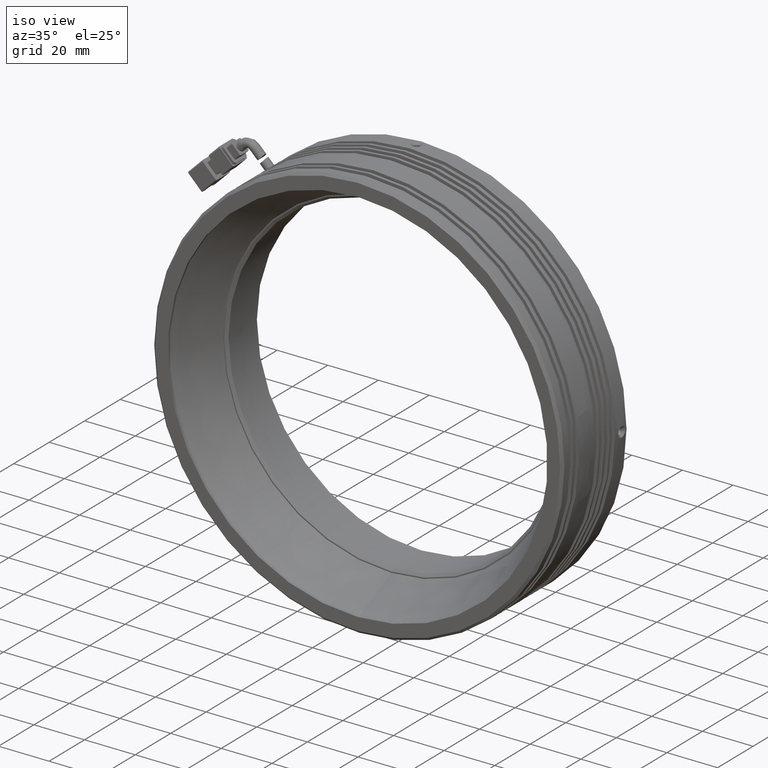
[diagram: clean part render]
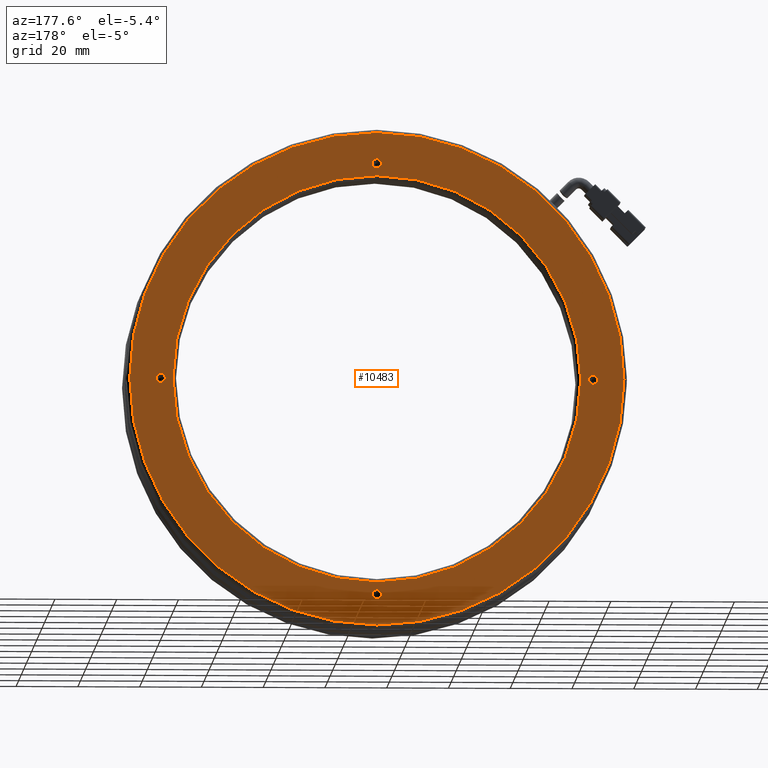
[diagram: tour spotlight — one face highlighted and labeled with its STEP entity id]
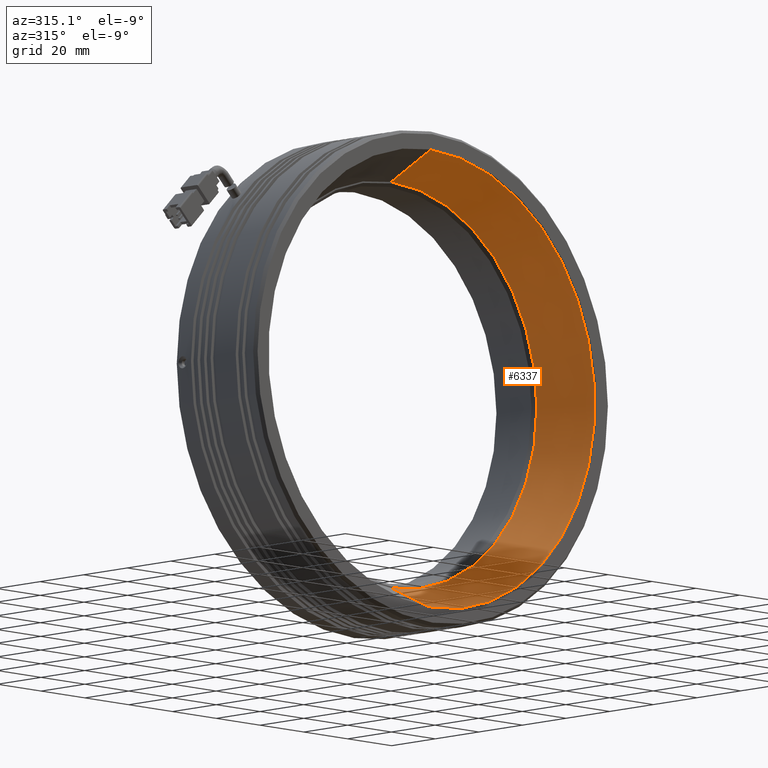
[diagram: tour spotlight — one face highlighted and labeled with its STEP entity id]
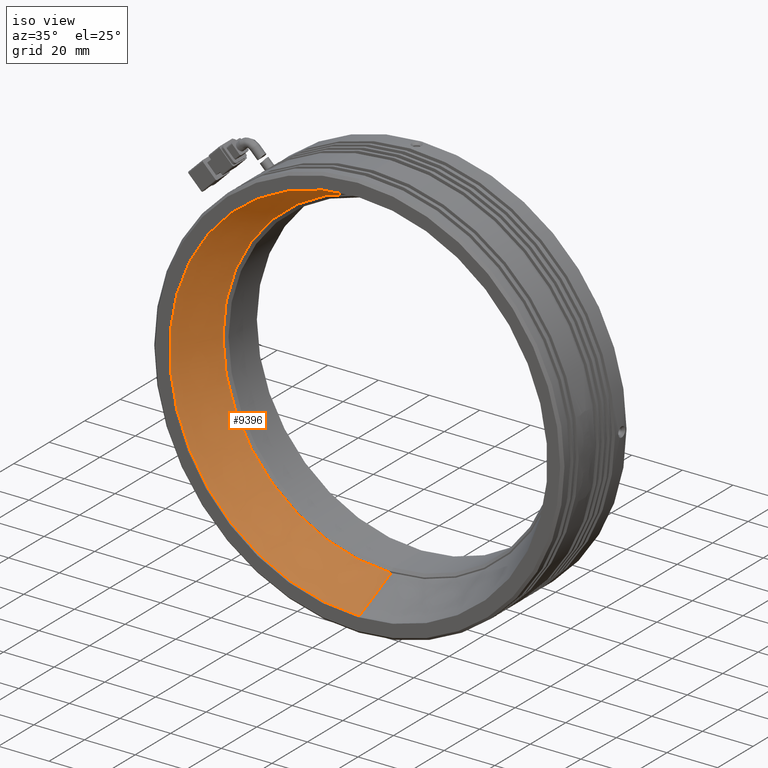
[diagram: tour spotlight — one face highlighted and labeled with its STEP entity id]
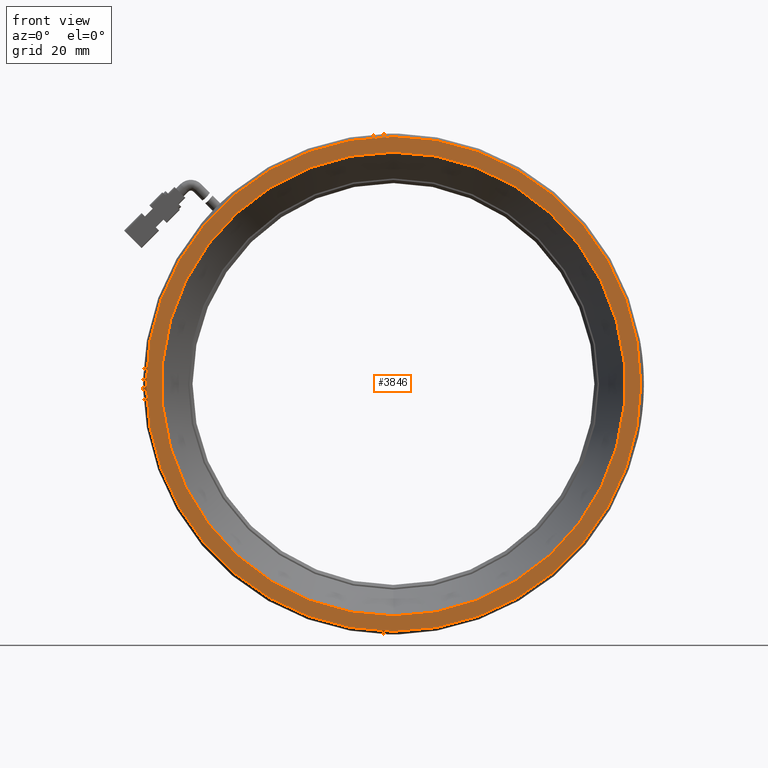
[diagram: tour spotlight — one face highlighted and labeled with its STEP entity id]
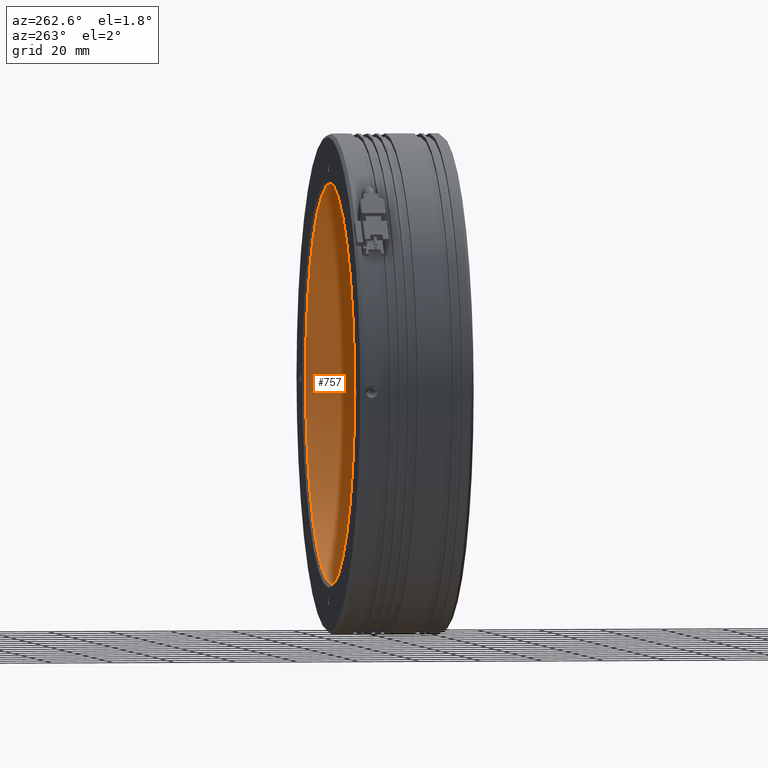
[diagram: tour spotlight — one face highlighted and labeled with its STEP entity id]
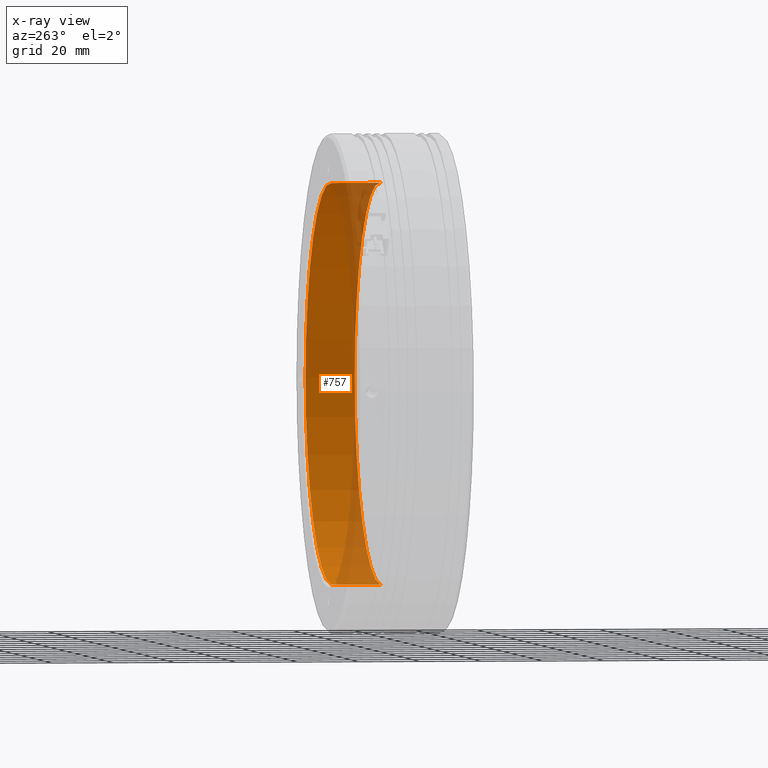
[diagram: x-ray of the same camera — body ghosted, this tour face saturated]
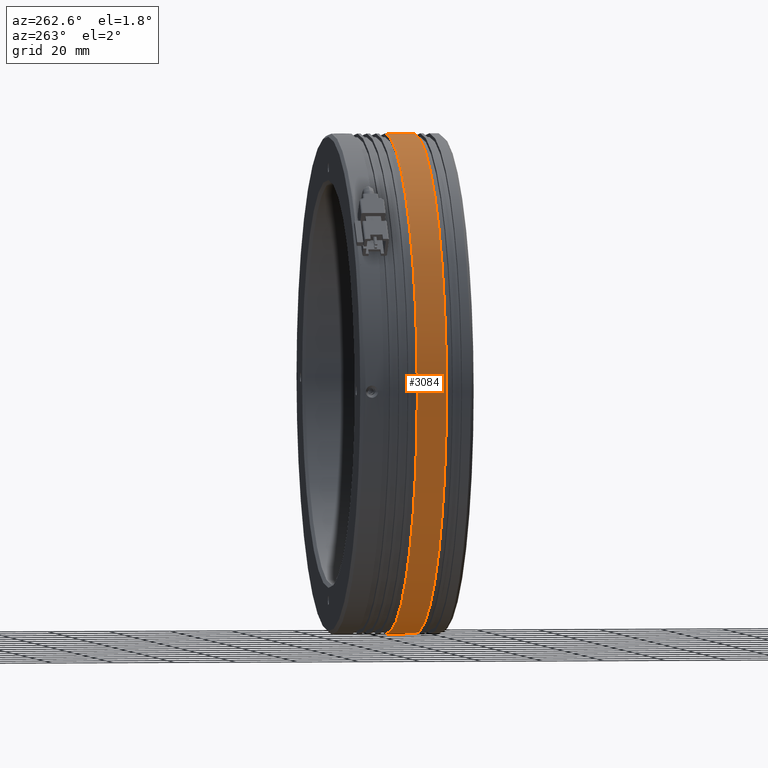
[diagram: tour spotlight — one face highlighted and labeled with its STEP entity id]
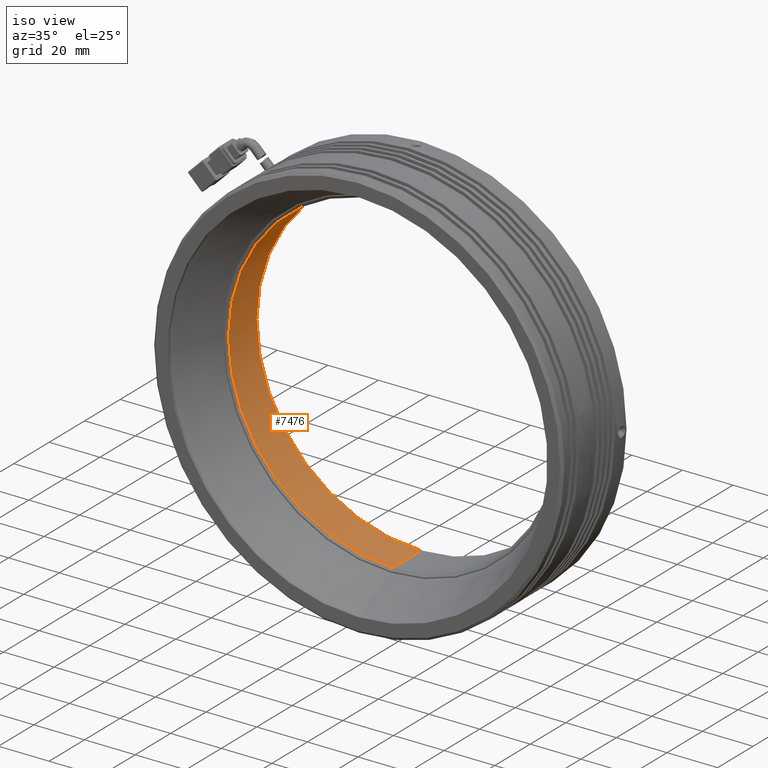
[diagram: tour spotlight — one face highlighted and labeled with its STEP entity id]
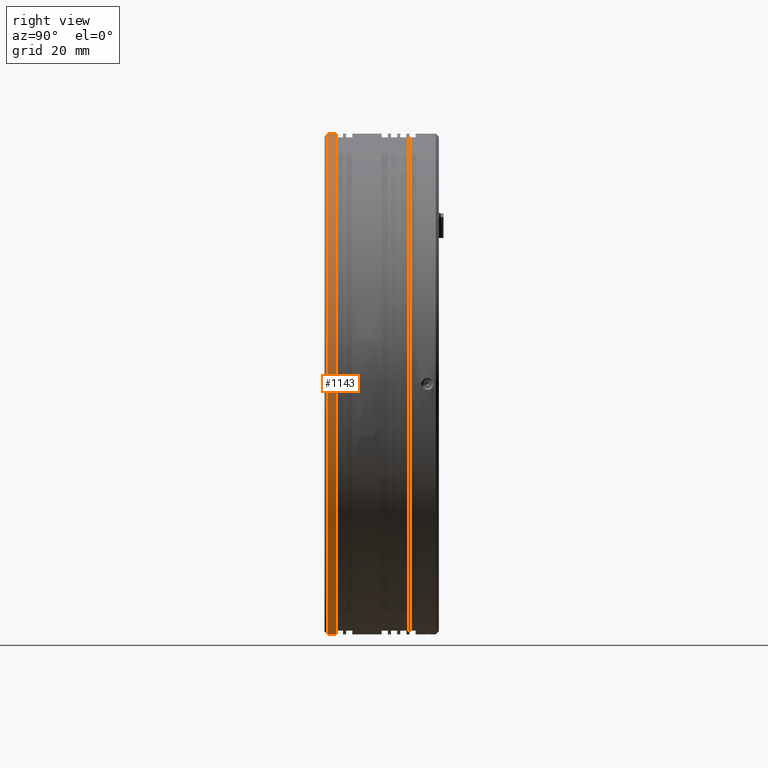
[diagram: tour spotlight — one face highlighted and labeled with its STEP entity id]
A machine part: a face-by-face anatomy tour. The part has 260 B-rep faces; the first image is the clean iso view, then the 8 largest visible faces are spotlighted one at a time (largest first), each with its STEP entity span.

Face 1 — auxiliary view, entity #10483. In plain terms, the highlighted planar face has unit normal (0, -1, 0).
Definition (entity closure, byte-faithful):
#1 = CIRCLE ( 'NONE', #6505, 66.00000000000001400 ) ;
#26 = FACE_BOUND ( 'NONE', #10278, .T. ) ;
#43 = CARTESIAN_POINT ( 'NONE',  ( -90.78502226688003400, 27.87111437184006100, 0.0000000000000000000 ) ) ;
#92 = VERTEX_POINT ( 'NONE', #3759 ) ;
#125 = CIRCLE ( 'NONE', #6568, 1.500000000000001300 ) ;
#360 = CIRCLE ( 'NONE', #4911, 79.99999999999998600 ) ;
#825 = VERTEX_POINT ( 'NONE', #10581 ) ;
#1055 = DIRECTION ( 'NONE',  ( 0.0000000000000000000, -0.0000000000000000000, -1.000000000000000000 ) ) ;
#1250 = CIRCLE ( 'NONE', #12548, 1.500000000000001300 ) ;
#1434 = EDGE_CURVE ( 'NONE', #5107, #11565, #360, .T. ) ;
#1439 = ORIENTED_EDGE ( 'NONE', *, *, #12697, .F. ) ;
#1466 = DIRECTION ( 'NONE',  ( -0.0000000000000000000, 1.000000000000000000, -0.0000000000000000000 ) ) ;
#1492 = ORIENTED_EDGE ( 'NONE', *, *, #3325, .F. ) ;
#1650 = EDGE_CURVE ( 'NONE', #8240, #825, #11745, .T. ) ;
#1949 = EDGE_CURVE ( 'NONE', #6465, #4518, #6792, .T. ) ;
#2053 = CIRCLE ( 'NONE', #8450, 1.500000000000001300 ) ;
#2465 = AXIS2_PLACEMENT_3D ( 'NONE', #43, #7068, #1055 ) ;
#2708 = FACE_BOUND ( 'NONE', #10499, .T. ) ;
#2718 = ORIENTED_EDGE ( 'NONE', *, *, #1434, .F. ) ;
#2871 = EDGE_LOOP ( 'NONE', ( #12938, #1492 ) ) ;
#3003 = CARTESIAN_POINT ( 'NONE',  ( -9.785022266879552800, 27.87111437184006100, -71.50000000000001400 ) ) ;
#3159 = CARTESIAN_POINT ( 'NONE',  ( -9.785022266880030600, 27.87111437184006100, 71.50000000000001400 ) ) ;
#3167 = VERTEX_POINT ( 'NONE', #10459 ) ;
#3191 = DIRECTION ( 'NONE',  ( -0.0000000000000000000, 1.000000000000000000, -0.0000000000000000000 ) ) ;
#3325 = EDGE_CURVE ( 'NONE', #13140, #5168, #1250, .T. ) ;
#3452 = DIRECTION ( 'NONE',  ( -0.0000000000000000000, 1.000000000000000000, -0.0000000000000000000 ) ) ;
#3497 = AXIS2_PLACEMENT_3D ( 'NONE', #4463, #11585, #5494 ) ;
#3677 = ORIENTED_EDGE ( 'NONE', *, *, #12940, .F. ) ;
#3759 = CARTESIAN_POINT ( 'NONE',  ( 60.21497773311997300, 27.87111437184006100, -1.499999999999272800 ) ) ;
#3829 = CARTESIAN_POINT ( 'NONE',  ( -79.78502226688004800, 27.87111437184006100, 1.499999999999761700 ) ) ;
#3860 = DIRECTION ( 'NONE',  ( -0.0000000000000000000, 1.000000000000000000, -0.0000000000000000000 ) ) ;
#3963 = ORIENTED_EDGE ( 'NONE', *, *, #1650, .F. ) ;
#3984 = EDGE_CURVE ( 'NONE', #12317, #5420, #6161, .T. ) ;
#4137 = CARTESIAN_POINT ( 'NONE',  ( -9.785022266880036000, 27.87111437184006100, 0.0000000000000000000 ) ) ;
#4362 = DIRECTION ( 'NONE',  ( -0.0000000000000000000, 1.000000000000000000, 0.0000000000000000000 ) ) ;
#4439 = AXIS2_PLACEMENT_3D ( 'NONE', #10467, #4362, #11485 ) ;
#4463 = CARTESIAN_POINT ( 'NONE',  ( -9.785022266880030600, 27.87111437184006100, 70.00000000000000000 ) ) ;
#4518 = VERTEX_POINT ( 'NONE', #3159 ) ;
#4526 = CARTESIAN_POINT ( 'NONE',  ( -9.785022266880027100, 27.87111437184006100, -66.00000000000001400 ) ) ;
#4535 = DIRECTION ( 'NONE',  ( -0.0000000000000000000, 1.000000000000000000, -0.0000000000000000000 ) ) ;
#4736 = DIRECTION ( 'NONE',  ( -0.0000000000000000000, 1.000000000000000000, -0.0000000000000000000 ) ) ;
#4911 = AXIS2_PLACEMENT_3D ( 'NONE', #6010, #13127, #7021 ) ;
#4954 = DIRECTION ( 'NONE',  ( -0.0000000000000000000, 1.000000000000000000, 0.0000000000000000000 ) ) ;
#5099 = EDGE_LOOP ( 'NONE', ( #1439, #7572 ) ) ;
#5107 = VERTEX_POINT ( 'NONE', #7712 ) ;
#5165 = DIRECTION ( 'NONE',  ( 0.0000000000000000000, 0.0000000000000000000, -1.000000000000000000 ) ) ;
#5168 = VERTEX_POINT ( 'NONE', #3829 ) ;
#5182 = EDGE_CURVE ( 'NONE', #92, #3167, #125, .T. ) ;
#5231 = AXIS2_PLACEMENT_3D ( 'NONE', #4137, #11247, #5165 ) ;
#5420 = VERTEX_POINT ( 'NONE', #9952 ) ;
#5494 = DIRECTION ( 'NONE',  ( 0.0000000000000000000, 0.0000000000000000000, 1.000000000000000000 ) ) ;
#5691 = ORIENTED_EDGE ( 'NONE', *, *, #3984, .F. ) ;
#5831 = CIRCLE ( 'NONE', #7980, 1.500000000000001300 ) ;
#5863 = CARTESIAN_POINT ( 'NONE',  ( 60.21497773311997300, 27.87111437184006100, 7.285131839178515600E-013 ) ) ;
#6010 = CARTESIAN_POINT ( 'NONE',  ( -9.785022266880036000, 27.87111437184006100, 0.0000000000000000000 ) ) ;
#6161 = CIRCLE ( 'NONE', #10796, 1.500000000000001300 ) ;
#6393 = AXIS2_PLACEMENT_3D ( 'NONE', #9922, #3860, #10971 ) ;
#6465 = VERTEX_POINT ( 'NONE', #7024 ) ;
#6505 = AXIS2_PLACEMENT_3D ( 'NONE', #11046, #4954, #12079 ) ;
#6568 = AXIS2_PLACEMENT_3D ( 'NONE', #5863, #12983, #6871 ) ;
#6792 = CIRCLE ( 'NONE', #3497, 1.500000000000001300 ) ;
#6871 = DIRECTION ( 'NONE',  ( 0.0000000000000000000, 0.0000000000000000000, 1.000000000000000000 ) ) ;
#7021 = DIRECTION ( 'NONE',  ( 0.0000000000000000000, 0.0000000000000000000, -1.000000000000000000 ) ) ;
#7024 = CARTESIAN_POINT ( 'NONE',  ( -9.785022266880030600, 27.87111437184006100, 68.50000000000000000 ) ) ;
#7068 = DIRECTION ( 'NONE',  ( 0.0000000000000000000, -1.000000000000000000, 0.0000000000000000000 ) ) ;
#7214 = EDGE_LOOP ( 'NONE', ( #2718, #8712 ) ) ;
#7490 = CARTESIAN_POINT ( 'NONE',  ( -9.785022266879552800, 27.87111437184006100, -70.00000000000000000 ) ) ;
#7572 = ORIENTED_EDGE ( 'NONE', *, *, #5182, .F. ) ;
#7712 = CARTESIAN_POINT ( 'NONE',  ( -9.785022266880036000, 27.87111437184006100, -79.99999999999998600 ) ) ;
#7756 = FACE_BOUND ( 'NONE', #5099, .T. ) ;
#7980 = AXIS2_PLACEMENT_3D ( 'NONE', #9511, #3452, #10544 ) ;
#7998 = AXIS2_PLACEMENT_3D ( 'NONE', #10637, #4535, #11653 ) ;
#8073 = PLANE ( 'NONE',  #2465 ) ;
#8082 = FACE_OUTER_BOUND ( 'NONE', #7214, .T. ) ;
#8240 = VERTEX_POINT ( 'NONE', #4526 ) ;
#8379 = FACE_BOUND ( 'NONE', #11858, .T. ) ;
#8450 = AXIS2_PLACEMENT_3D ( 'NONE', #9237, #3191, #10267 ) ;
#8510 = DIRECTION ( 'NONE',  ( 0.0000000000000000000, 0.0000000000000000000, 1.000000000000000000 ) ) ;
#8579 = CARTESIAN_POINT ( 'NONE',  ( -9.785022266880025300, 27.87111437184006100, 79.99999999999998600 ) ) ;
#8712 = ORIENTED_EDGE ( 'NONE', *, *, #13075, .F. ) ;
#9237 = CARTESIAN_POINT ( 'NONE',  ( 60.21497773311997300, 27.87111437184006100, 7.285131839178515600E-013 ) ) ;
#9365 = ORIENTED_EDGE ( 'NONE', *, *, #1949, .F. ) ;
#9511 = CARTESIAN_POINT ( 'NONE',  ( -9.785022266879552800, 27.87111437184006100, -70.00000000000000000 ) ) ;
#9922 = CARTESIAN_POINT ( 'NONE',  ( -9.785022266880030600, 27.87111437184006100, 70.00000000000000000 ) ) ;
#9952 = CARTESIAN_POINT ( 'NONE',  ( -9.785022266879552800, 27.87111437184006100, -68.50000000000000000 ) ) ;
#10267 = DIRECTION ( 'NONE',  ( 0.0000000000000000000, 0.0000000000000000000, 1.000000000000000000 ) ) ;
#10278 = EDGE_LOOP ( 'NONE', ( #3677, #9365 ) ) ;
#10305 = CARTESIAN_POINT ( 'NONE',  ( -79.78502226688004800, 27.87111437184006100, -1.500000000000240900 ) ) ;
#10439 = FACE_BOUND ( 'NONE', #2871, .T. ) ;
#10459 = CARTESIAN_POINT ( 'NONE',  ( 60.21497773311997300, 27.87111437184006100, 1.500000000000729900 ) ) ;
#10467 = CARTESIAN_POINT ( 'NONE',  ( -9.785022266880036000, 27.87111437184006100, 0.0000000000000000000 ) ) ;
#10483 = ADVANCED_FACE ( 'NONE', ( #8082, #2708, #26, #10439, #8379, #7756 ), #8073, .F. ) ;
#10499 = EDGE_LOOP ( 'NONE', ( #12259, #3963 ) ) ;
#10544 = DIRECTION ( 'NONE',  ( 0.0000000000000000000, 0.0000000000000000000, 1.000000000000000000 ) ) ;
#10581 = CARTESIAN_POINT ( 'NONE',  ( -9.785022266880036000, 27.87111437184006100, 66.00000000000001400 ) ) ;
#10637 = CARTESIAN_POINT ( 'NONE',  ( -79.78502226688004800, 27.87111437184006100, -2.397057964798127900E-013 ) ) ;
#10796 = AXIS2_PLACEMENT_3D ( 'NONE', #7490, #1466, #8510 ) ;
#10831 = CARTESIAN_POINT ( 'NONE',  ( -79.78502226688004800, 27.87111437184006100, -2.397057964798127900E-013 ) ) ;
#10913 = CIRCLE ( 'NONE', #5231, 79.99999999999998600 ) ;
#10971 = DIRECTION ( 'NONE',  ( 0.0000000000000000000, 0.0000000000000000000, 1.000000000000000000 ) ) ;
#11046 = CARTESIAN_POINT ( 'NONE',  ( -9.785022266880036000, 27.87111437184006100, 0.0000000000000000000 ) ) ;
#11225 = CIRCLE ( 'NONE', #7998, 1.500000000000001300 ) ;
#11247 = DIRECTION ( 'NONE',  ( 0.0000000000000000000, -1.000000000000000000, 0.0000000000000000000 ) ) ;
#11485 = DIRECTION ( 'NONE',  ( 0.0000000000000000000, 0.0000000000000000000, 1.000000000000000000 ) ) ;
#11565 = VERTEX_POINT ( 'NONE', #8579 ) ;
#11585 = DIRECTION ( 'NONE',  ( -0.0000000000000000000, 1.000000000000000000, -0.0000000000000000000 ) ) ;
#11653 = DIRECTION ( 'NONE',  ( 0.0000000000000000000, 0.0000000000000000000, 1.000000000000000000 ) ) ;
#11734 = ORIENTED_EDGE ( 'NONE', *, *, #12755, .F. ) ;
#11745 = CIRCLE ( 'NONE', #4439, 66.00000000000001400 ) ;
#11842 = DIRECTION ( 'NONE',  ( 0.0000000000000000000, 0.0000000000000000000, 1.000000000000000000 ) ) ;
#11858 = EDGE_LOOP ( 'NONE', ( #11734, #5691 ) ) ;
#12079 = DIRECTION ( 'NONE',  ( 0.0000000000000000000, 0.0000000000000000000, 1.000000000000000000 ) ) ;
#12259 = ORIENTED_EDGE ( 'NONE', *, *, #12977, .F. ) ;
#12317 = VERTEX_POINT ( 'NONE', #3003 ) ;
#12548 = AXIS2_PLACEMENT_3D ( 'NONE', #10831, #4736, #11842 ) ;
#12697 = EDGE_CURVE ( 'NONE', #3167, #92, #2053, .T. ) ;
#12755 = EDGE_CURVE ( 'NONE', #5420, #12317, #5831, .T. ) ;
#12792 = EDGE_CURVE ( 'NONE', #5168, #13140, #11225, .T. ) ;
#12821 = CIRCLE ( 'NONE', #6393, 1.500000000000001300 ) ;
#12938 = ORIENTED_EDGE ( 'NONE', *, *, #12792, .F. ) ;
#12940 = EDGE_CURVE ( 'NONE', #4518, #6465, #12821, .T. ) ;
#12977 = EDGE_CURVE ( 'NONE', #825, #8240, #1, .T. ) ;
#12983 = DIRECTION ( 'NONE',  ( -0.0000000000000000000, 1.000000000000000000, -0.0000000000000000000 ) ) ;
#13075 = EDGE_CURVE ( 'NONE', #11565, #5107, #10913, .T. ) ;
#13127 = DIRECTION ( 'NONE',  ( 0.0000000000000000000, -1.000000000000000000, 0.0000000000000000000 ) ) ;
#13140 = VERTEX_POINT ( 'NONE', #10305 ) ;

Face 2 — auxiliary view, entity #6337. In plain terms, the highlighted conical surface has half-angle 25.278 deg.
Definition (entity closure, byte-faithful):
#222 = CARTESIAN_POINT ( 'NONE',  ( -9.785022266880036000, 9.871114371840059600, 0.0000000000000000000 ) ) ;
#312 = EDGE_CURVE ( 'NONE', #10387, #10478, #10923, .T. ) ;
#356 = EDGE_CURVE ( 'NONE', #5316, #10387, #12034, .T. ) ;
#394 = EDGE_CURVE ( 'NONE', #5316, #9903, #1570, .T. ) ;
#663 = EDGE_CURVE ( 'NONE', #9903, #10478, #10397, .T. ) ;
#1132 = FACE_OUTER_BOUND ( 'NONE', #4514, .T. ) ;
#1231 = DIRECTION ( 'NONE',  ( -0.0000000000000000000, -1.000000000000000000, -0.0000000000000000000 ) ) ;
#1570 = LINE ( 'NONE', #2239, #8976 ) ;
#2143 = DIRECTION ( 'NONE',  ( 0.0000000000000000000, 1.043442692316876500E-016, -1.000000000000000000 ) ) ;
#2239 = CARTESIAN_POINT ( 'NONE',  ( -9.785022266880036000, -8.128885628159929800, -75.00000000000000000 ) ) ;
#2477 = AXIS2_PLACEMENT_3D ( 'NONE', #10953, #12962, #3804 ) ;
#3155 = DIRECTION ( 'NONE',  ( 0.0000000000000000000, -0.9042486467459910400, -0.4270063054078288600 ) ) ;
#3804 = DIRECTION ( 'NONE',  ( 0.0000000000000000000, 0.0000000000000000000, -1.000000000000000000 ) ) ;
#4263 = DIRECTION ( 'NONE',  ( 0.0000000000000000000, -1.000000000000000000, 0.0000000000000000000 ) ) ;
#4514 = EDGE_LOOP ( 'NONE', ( #11080, #7419, #9791, #8838 ) ) ;
#5316 = VERTEX_POINT ( 'NONE', #9720 ) ;
#5823 = VECTOR ( 'NONE', #9310, 1000.000000000000000 ) ;
#6294 = CARTESIAN_POINT ( 'NONE',  ( -9.785022266880027100, -8.128885628159929800, 75.00000000000000000 ) ) ;
#6337 = ADVANCED_FACE ( 'NONE', ( #1132 ), #8535, .F. ) ;
#6913 = CARTESIAN_POINT ( 'NONE',  ( -9.785022266880036000, -8.128885628159929800, -75.00000000000000000 ) ) ;
#7419 = ORIENTED_EDGE ( 'NONE', *, *, #356, .F. ) ;
#8016 = AXIS2_PLACEMENT_3D ( 'NONE', #10352, #4263, #11374 ) ;
#8535 = CONICAL_SURFACE ( 'NONE', #2477, 75.00000000000000000, 0.4411794804149804500 ) ;
#8699 = AXIS2_PLACEMENT_3D ( 'NONE', #222, #1231, #2143 ) ;
#8838 = ORIENTED_EDGE ( 'NONE', *, *, #663, .T. ) ;
#8976 = VECTOR ( 'NONE', #3155, 1000.000000000000000 ) ;
#9025 = CARTESIAN_POINT ( 'NONE',  ( -9.785022266880027100, -8.128885628159929800, 75.00000000000000000 ) ) ;
#9310 = DIRECTION ( 'NONE',  ( 5.229319051334347500E-017, -0.9042486467459910400, 0.4270063054078288600 ) ) ;
#9720 = CARTESIAN_POINT ( 'NONE',  ( -9.785022266880036000, 9.871114371840066700, -66.50000000000000000 ) ) ;
#9791 = ORIENTED_EDGE ( 'NONE', *, *, #394, .T. ) ;
#9903 = VERTEX_POINT ( 'NONE', #6913 ) ;
#9923 = CARTESIAN_POINT ( 'NONE',  ( -9.785022266880027100, 9.871114371840059600, 66.50000000000000000 ) ) ;
#10352 = CARTESIAN_POINT ( 'NONE',  ( -9.785022266880036000, -8.128885628159929800, 0.0000000000000000000 ) ) ;
#10387 = VERTEX_POINT ( 'NONE', #9923 ) ;
#10397 = CIRCLE ( 'NONE', #8016, 75.00000000000000000 ) ;
#10478 = VERTEX_POINT ( 'NONE', #9025 ) ;
#10923 = LINE ( 'NONE', #6294, #5823 ) ;
#10953 = CARTESIAN_POINT ( 'NONE',  ( -9.785022266880036000, -8.128885628159929800, 0.0000000000000000000 ) ) ;
#11080 = ORIENTED_EDGE ( 'NONE', *, *, #312, .F. ) ;
#11374 = DIRECTION ( 'NONE',  ( 0.0000000000000000000, 0.0000000000000000000, -1.000000000000000000 ) ) ;
#12034 = CIRCLE ( 'NONE', #8699, 66.50000000000000000 ) ;
#12962 = DIRECTION ( 'NONE',  ( 0.0000000000000000000, -1.000000000000000000, 0.0000000000000000000 ) ) ;

Face 3 — iso view, entity #9396. In plain terms, the highlighted conical surface has half-angle 25.278 deg.
Definition (entity closure, byte-faithful):
#292 = EDGE_CURVE ( 'NONE', #10387, #5316, #3129, .T. ) ;
#312 = EDGE_CURVE ( 'NONE', #10387, #10478, #10923, .T. ) ;
#343 = EDGE_LOOP ( 'NONE', ( #1129, #1773, #10776, #1928 ) ) ;
#374 = EDGE_CURVE ( 'NONE', #10478, #9903, #6595, .T. ) ;
#394 = EDGE_CURVE ( 'NONE', #5316, #9903, #1570, .T. ) ;
#1129 = ORIENTED_EDGE ( 'NONE', *, *, #292, .F. ) ;
#1570 = LINE ( 'NONE', #2239, #8976 ) ;
#1773 = ORIENTED_EDGE ( 'NONE', *, *, #312, .T. ) ;
#1928 = ORIENTED_EDGE ( 'NONE', *, *, #394, .F. ) ;
#2239 = CARTESIAN_POINT ( 'NONE',  ( -9.785022266880036000, -8.128885628159929800, -75.00000000000000000 ) ) ;
#3129 = CIRCLE ( 'NONE', #8874, 66.50000000000000000 ) ;
#3155 = DIRECTION ( 'NONE',  ( 0.0000000000000000000, -0.9042486467459910400, -0.4270063054078288600 ) ) ;
#3233 = CARTESIAN_POINT ( 'NONE',  ( -9.785022266880036000, -8.128885628159929800, 0.0000000000000000000 ) ) ;
#4965 = DIRECTION ( 'NONE',  ( 0.0000000000000000000, -1.000000000000000000, 0.0000000000000000000 ) ) ;
#5185 = DIRECTION ( 'NONE',  ( 0.0000000000000000000, 0.0000000000000000000, -1.000000000000000000 ) ) ;
#5277 = CARTESIAN_POINT ( 'NONE',  ( -9.785022266880036000, 9.871114371840059600, 0.0000000000000000000 ) ) ;
#5316 = VERTEX_POINT ( 'NONE', #9720 ) ;
#5318 = DIRECTION ( 'NONE',  ( -0.0000000000000000000, -1.000000000000000000, -0.0000000000000000000 ) ) ;
#5370 = DIRECTION ( 'NONE',  ( 0.0000000000000000000, 1.043442692316876500E-016, -1.000000000000000000 ) ) ;
#5823 = VECTOR ( 'NONE', #9310, 1000.000000000000000 ) ;
#6079 = CARTESIAN_POINT ( 'NONE',  ( -9.785022266880036000, -8.128885628159929800, 0.0000000000000000000 ) ) ;
#6294 = CARTESIAN_POINT ( 'NONE',  ( -9.785022266880027100, -8.128885628159929800, 75.00000000000000000 ) ) ;
#6371 = AXIS2_PLACEMENT_3D ( 'NONE', #6079, #7056, #8052 ) ;
#6410 = FACE_OUTER_BOUND ( 'NONE', #343, .T. ) ;
#6595 = CIRCLE ( 'NONE', #8632, 75.00000000000000000 ) ;
#6913 = CARTESIAN_POINT ( 'NONE',  ( -9.785022266880036000, -8.128885628159929800, -75.00000000000000000 ) ) ;
#7056 = DIRECTION ( 'NONE',  ( 0.0000000000000000000, -1.000000000000000000, 0.0000000000000000000 ) ) ;
#8052 = DIRECTION ( 'NONE',  ( 0.0000000000000000000, 0.0000000000000000000, -1.000000000000000000 ) ) ;
#8632 = AXIS2_PLACEMENT_3D ( 'NONE', #3233, #4965, #5185 ) ;
#8821 = CONICAL_SURFACE ( 'NONE', #6371, 75.00000000000000000, 0.4411794804149804500 ) ;
#8874 = AXIS2_PLACEMENT_3D ( 'NONE', #5277, #5318, #5370 ) ;
#8976 = VECTOR ( 'NONE', #3155, 1000.000000000000000 ) ;
#9025 = CARTESIAN_POINT ( 'NONE',  ( -9.785022266880027100, -8.128885628159929800, 75.00000000000000000 ) ) ;
#9310 = DIRECTION ( 'NONE',  ( 5.229319051334347500E-017, -0.9042486467459910400, 0.4270063054078288600 ) ) ;
#9396 = ADVANCED_FACE ( 'NONE', ( #6410 ), #8821, .F. ) ;
#9720 = CARTESIAN_POINT ( 'NONE',  ( -9.785022266880036000, 9.871114371840066700, -66.50000000000000000 ) ) ;
#9903 = VERTEX_POINT ( 'NONE', #6913 ) ;
#9923 = CARTESIAN_POINT ( 'NONE',  ( -9.785022266880027100, 9.871114371840059600, 66.50000000000000000 ) ) ;
#10387 = VERTEX_POINT ( 'NONE', #9923 ) ;
#10478 = VERTEX_POINT ( 'NONE', #9025 ) ;
#10776 = ORIENTED_EDGE ( 'NONE', *, *, #374, .T. ) ;
#10923 = LINE ( 'NONE', #6294, #5823 ) ;

Face 4 — front view, entity #3846. In plain terms, the highlighted planar face has unit normal (0, 1, 0).
Definition (entity closure, byte-faithful):
#65 = CARTESIAN_POINT ( 'NONE',  ( -9.785022266880025300, -9.128885628159958200, -79.99999999999998600 ) ) ;
#992 = EDGE_LOOP ( 'NONE', ( #6445, #2440 ) ) ;
#1625 = FACE_OUTER_BOUND ( 'NONE', #3773, .T. ) ;
#1658 = CARTESIAN_POINT ( 'NONE',  ( -9.785022266880036000, -9.128885628159958200, 0.0000000000000000000 ) ) ;
#2029 = CARTESIAN_POINT ( 'NONE',  ( -9.785022266880036000, -9.128885628159958200, 79.99999999999998600 ) ) ;
#2428 = DIRECTION ( 'NONE',  ( -0.0000000000000000000, 1.000000000000000000, 0.0000000000000000000 ) ) ;
#2440 = ORIENTED_EDGE ( 'NONE', *, *, #12901, .T. ) ;
#2665 = DIRECTION ( 'NONE',  ( 0.0000000000000000000, 0.0000000000000000000, -1.000000000000000000 ) ) ;
#3262 = VERTEX_POINT ( 'NONE', #5663 ) ;
#3276 = CARTESIAN_POINT ( 'NONE',  ( -9.785022266880036000, -9.128885628159958200, 0.0000000000000000000 ) ) ;
#3552 = EDGE_CURVE ( 'NONE', #3262, #9932, #7885, .T. ) ;
#3773 = EDGE_LOOP ( 'NONE', ( #5633, #8470 ) ) ;
#3846 = ADVANCED_FACE ( 'NONE', ( #6984, #1625 ), #6205, .F. ) ;
#4271 = DIRECTION ( 'NONE',  ( 0.0000000000000000000, 0.0000000000000000000, 1.000000000000000000 ) ) ;
#4741 = VERTEX_POINT ( 'NONE', #65 ) ;
#4783 = DIRECTION ( 'NONE',  ( 0.0000000000000000000, 1.000000000000000000, 0.0000000000000000000 ) ) ;
#4872 = CARTESIAN_POINT ( 'NONE',  ( -9.785022266880027100, -9.128885628159958200, 75.00000000000000000 ) ) ;
#4936 = EDGE_CURVE ( 'NONE', #9071, #4741, #9772, .T. ) ;
#5237 = DIRECTION ( 'NONE',  ( 0.0000000000000000000, 1.000000000000000000, 0.0000000000000000000 ) ) ;
#5633 = ORIENTED_EDGE ( 'NONE', *, *, #4936, .F. ) ;
#5663 = CARTESIAN_POINT ( 'NONE',  ( -9.785022266880036000, -9.128885628159958200, -75.00000000000000000 ) ) ;
#6205 = PLANE ( 'NONE',  #11132 ) ;
#6445 = ORIENTED_EDGE ( 'NONE', *, *, #3552, .T. ) ;
#6599 = CIRCLE ( 'NONE', #7091, 75.00000000000000000 ) ;
#6984 = FACE_BOUND ( 'NONE', #992, .T. ) ;
#7091 = AXIS2_PLACEMENT_3D ( 'NONE', #10874, #4783, #11899 ) ;
#7552 = CIRCLE ( 'NONE', #12085, 79.99999999999998600 ) ;
#7626 = AXIS2_PLACEMENT_3D ( 'NONE', #8459, #2428, #9473 ) ;
#7885 = CIRCLE ( 'NONE', #11961, 75.00000000000000000 ) ;
#8459 = CARTESIAN_POINT ( 'NONE',  ( -9.785022266880036000, -9.128885628159958200, 0.0000000000000000000 ) ) ;
#8470 = ORIENTED_EDGE ( 'NONE', *, *, #12418, .F. ) ;
#8716 = DIRECTION ( 'NONE',  ( 0.0000000000000000000, 1.000000000000000000, 0.0000000000000000000 ) ) ;
#9071 = VERTEX_POINT ( 'NONE', #2029 ) ;
#9473 = DIRECTION ( 'NONE',  ( 0.0000000000000000000, 0.0000000000000000000, 1.000000000000000000 ) ) ;
#9772 = CIRCLE ( 'NONE', #7626, 79.99999999999998600 ) ;
#9932 = VERTEX_POINT ( 'NONE', #4872 ) ;
#10361 = DIRECTION ( 'NONE',  ( -0.0000000000000000000, 1.000000000000000000, 0.0000000000000000000 ) ) ;
#10874 = CARTESIAN_POINT ( 'NONE',  ( -9.785022266880036000, -9.128885628159958200, 0.0000000000000000000 ) ) ;
#11132 = AXIS2_PLACEMENT_3D ( 'NONE', #11319, #5237, #12343 ) ;
#11319 = CARTESIAN_POINT ( 'NONE',  ( -9.785022266880036000, -9.128885628159958200, 0.0000000000000000000 ) ) ;
#11899 = DIRECTION ( 'NONE',  ( 0.0000000000000000000, 0.0000000000000000000, -1.000000000000000000 ) ) ;
#11961 = AXIS2_PLACEMENT_3D ( 'NONE', #1658, #8716, #2665 ) ;
#12085 = AXIS2_PLACEMENT_3D ( 'NONE', #3276, #10361, #4271 ) ;
#12343 = DIRECTION ( 'NONE',  ( 0.0000000000000000000, -0.0000000000000000000, 1.000000000000000000 ) ) ;
#12418 = EDGE_CURVE ( 'NONE', #4741, #9071, #7552, .T. ) ;
#12901 = EDGE_CURVE ( 'NONE', #9932, #3262, #6599, .T. ) ;

Face 5 — auxiliary view, entity #757. An x-ray twin of the same camera follows (body ghosted, this face saturated) — the face is partly hidden behind the body. In plain terms, the highlighted cylindrical surface (partial cylindrical patch) has radius 65 mm, axis along (-0, -1, -0).
Definition (entity closure, byte-faithful):
#456 = FACE_OUTER_BOUND ( 'NONE', #2829, .T. ) ;
#547 = VECTOR ( 'NONE', #6114, 1000.000000000000000 ) ;
#611 = CARTESIAN_POINT ( 'NONE',  ( -9.785022266880027100, 26.87111437184004700, 65.00000000000000000 ) ) ;
#630 = ORIENTED_EDGE ( 'NONE', *, *, #12247, .F. ) ;
#757 = ADVANCED_FACE ( 'NONE', ( #456 ), #9929, .F. ) ;
#1255 = ORIENTED_EDGE ( 'NONE', *, *, #5696, .T. ) ;
#1393 = CARTESIAN_POINT ( 'NONE',  ( -9.785022266880036000, -36.61656906723988000, 0.0000000000000000000 ) ) ;
#1944 = VECTOR ( 'NONE', #7139, 1000.000000000000000 ) ;
#2158 = ORIENTED_EDGE ( 'NONE', *, *, #12569, .T. ) ;
#2455 = DIRECTION ( 'NONE',  ( 0.0000000000000000000, 0.0000000000000000000, -1.000000000000000000 ) ) ;
#2758 = VERTEX_POINT ( 'NONE', #611 ) ;
#2829 = EDGE_LOOP ( 'NONE', ( #10395, #2158, #1255, #630 ) ) ;
#2891 = CARTESIAN_POINT ( 'NONE',  ( -9.785022266880036000, 10.87111437183998300, 0.0000000000000000000 ) ) ;
#3121 = CARTESIAN_POINT ( 'NONE',  ( -9.785022266880027100, -36.61656906723988000, 65.00000000000000000 ) ) ;
#3165 = CARTESIAN_POINT ( 'NONE',  ( -9.785022266880036000, -36.61656906723988000, -65.00000000000000000 ) ) ;
#3459 = CIRCLE ( 'NONE', #5169, 65.00000000000000000 ) ;
#3594 = CARTESIAN_POINT ( 'NONE',  ( -9.785022266880027100, 10.87111437183998300, 65.00000000000000000 ) ) ;
#3826 = EDGE_CURVE ( 'NONE', #2758, #5990, #7276, .T. ) ;
#3873 = DIRECTION ( 'NONE',  ( 0.0000000000000000000, 0.0000000000000000000, -1.000000000000000000 ) ) ;
#4893 = CARTESIAN_POINT ( 'NONE',  ( -9.785022266880036000, 26.87111437184004700, -65.00000000000000000 ) ) ;
#4924 = CARTESIAN_POINT ( 'NONE',  ( -9.785022266880036000, 26.87111437184004700, 0.0000000000000000000 ) ) ;
#5169 = AXIS2_PLACEMENT_3D ( 'NONE', #2891, #9938, #3873 ) ;
#5696 = EDGE_CURVE ( 'NONE', #9270, #12558, #8571, .T. ) ;
#5947 = DIRECTION ( 'NONE',  ( 0.0000000000000000000, 0.0000000000000000000, 1.000000000000000000 ) ) ;
#5990 = VERTEX_POINT ( 'NONE', #3594 ) ;
#6114 = DIRECTION ( 'NONE',  ( -0.0000000000000000000, -1.000000000000000000, -0.0000000000000000000 ) ) ;
#7139 = DIRECTION ( 'NONE',  ( -0.0000000000000000000, -1.000000000000000000, -0.0000000000000000000 ) ) ;
#7276 = LINE ( 'NONE', #3121, #1944 ) ;
#7576 = AXIS2_PLACEMENT_3D ( 'NONE', #1393, #10497, #2455 ) ;
#7962 = CARTESIAN_POINT ( 'NONE',  ( -9.785022266880036000, 10.87111437183998300, -65.00000000000000000 ) ) ;
#8571 = LINE ( 'NONE', #3165, #547 ) ;
#9270 = VERTEX_POINT ( 'NONE', #4893 ) ;
#9929 = CYLINDRICAL_SURFACE ( 'NONE', #7576, 65.00000000000000000 ) ;
#9938 = DIRECTION ( 'NONE',  ( 0.0000000000000000000, 1.000000000000000000, 0.0000000000000000000 ) ) ;
#10395 = ORIENTED_EDGE ( 'NONE', *, *, #3826, .F. ) ;
#10497 = DIRECTION ( 'NONE',  ( -0.0000000000000000000, -1.000000000000000000, -0.0000000000000000000 ) ) ;
#10500 = AXIS2_PLACEMENT_3D ( 'NONE', #4924, #12040, #5947 ) ;
#12040 = DIRECTION ( 'NONE',  ( -0.0000000000000000000, 1.000000000000000000, -0.0000000000000000000 ) ) ;
#12247 = EDGE_CURVE ( 'NONE', #5990, #12558, #3459, .T. ) ;
#12478 = CIRCLE ( 'NONE', #10500, 65.00000000000000000 ) ;
#12558 = VERTEX_POINT ( 'NONE', #7962 ) ;
#12569 = EDGE_CURVE ( 'NONE', #2758, #9270, #12478, .T. ) ;

Face 6 — auxiliary view, entity #3084. In plain terms, the highlighted cylindrical surface (partial cylindrical patch) has radius 81 mm, axis along (-0, -1, -0).
Definition (entity closure, byte-faithful):
#1228 = DIRECTION ( 'NONE',  ( -0.0000000000000000000, -1.000000000000000000, -0.0000000000000000000 ) ) ;
#1485 = CARTESIAN_POINT ( 'NONE',  ( -9.785022266880036000, 9.371114371840052500, 0.0000000000000000000 ) ) ;
#1757 = FACE_OUTER_BOUND ( 'NONE', #12086, .T. ) ;
#2495 = DIRECTION ( 'NONE',  ( 0.0000000000000000000, 0.0000000000000000000, -1.000000000000000000 ) ) ;
#2586 = CARTESIAN_POINT ( 'NONE',  ( -9.785022266880036000, -0.1288856281599498600, 0.0000000000000000000 ) ) ;
#3084 = ADVANCED_FACE ( 'NONE', ( #1757 ), #8517, .T. ) ;
#3318 = ORIENTED_EDGE ( 'NONE', *, *, #11536, .T. ) ;
#3354 = VERTEX_POINT ( 'NONE', #6774 ) ;
#3464 = VERTEX_POINT ( 'NONE', #4515 ) ;
#3566 = DIRECTION ( 'NONE',  ( 0.0000000000000000000, 0.0000000000000000000, -1.000000000000000000 ) ) ;
#3637 = ORIENTED_EDGE ( 'NONE', *, *, #9926, .F. ) ;
#3724 = VECTOR ( 'NONE', #9985, 1000.000000000000000 ) ;
#4074 = DIRECTION ( 'NONE',  ( -0.0000000000000000000, -1.000000000000000000, -0.0000000000000000000 ) ) ;
#4515 = CARTESIAN_POINT ( 'NONE',  ( -9.785022266880036000, -0.1288856281599498600, -80.99999999999995700 ) ) ;
#4730 = CARTESIAN_POINT ( 'NONE',  ( -9.785022266880025300, 9.371114371840052500, 80.99999999999995700 ) ) ;
#4997 = CARTESIAN_POINT ( 'NONE',  ( -9.785022266880036000, -37.73097191106735000, -80.99999999999995700 ) ) ;
#5138 = CIRCLE ( 'NONE', #11811, 80.99999999999995700 ) ;
#5142 = DIRECTION ( 'NONE',  ( 0.0000000000000000000, 0.0000000000000000000, -1.000000000000000000 ) ) ;
#6384 = LINE ( 'NONE', #13032, #3724 ) ;
#6551 = VECTOR ( 'NONE', #1228, 1000.000000000000000 ) ;
#6774 = CARTESIAN_POINT ( 'NONE',  ( -9.785022266880025300, -0.1288856281599498600, 80.99999999999995700 ) ) ;
#7375 = VERTEX_POINT ( 'NONE', #4730 ) ;
#7917 = ORIENTED_EDGE ( 'NONE', *, *, #10035, .T. ) ;
#8517 = CYLINDRICAL_SURFACE ( 'NONE', #11894, 80.99999999999995700 ) ;
#8534 = DIRECTION ( 'NONE',  ( -0.0000000000000000000, -1.000000000000000000, -0.0000000000000000000 ) ) ;
#9210 = ORIENTED_EDGE ( 'NONE', *, *, #11580, .T. ) ;
#9629 = DIRECTION ( 'NONE',  ( 0.0000000000000000000, 1.000000000000000000, 0.0000000000000000000 ) ) ;
#9926 = EDGE_CURVE ( 'NONE', #7375, #3354, #6384, .T. ) ;
#9985 = DIRECTION ( 'NONE',  ( -0.0000000000000000000, -1.000000000000000000, -0.0000000000000000000 ) ) ;
#10035 = EDGE_CURVE ( 'NONE', #10137, #3464, #11994, .T. ) ;
#10137 = VERTEX_POINT ( 'NONE', #11388 ) ;
#11219 = CARTESIAN_POINT ( 'NONE',  ( -9.785022266880036000, -37.73097191106735000, 0.0000000000000000000 ) ) ;
#11388 = CARTESIAN_POINT ( 'NONE',  ( -9.785022266880036000, 9.371114371840052500, -80.99999999999995700 ) ) ;
#11486 = CIRCLE ( 'NONE', #12948, 80.99999999999995700 ) ;
#11536 = EDGE_CURVE ( 'NONE', #7375, #10137, #11486, .T. ) ;
#11580 = EDGE_CURVE ( 'NONE', #3464, #3354, #5138, .T. ) ;
#11811 = AXIS2_PLACEMENT_3D ( 'NONE', #2586, #9629, #3566 ) ;
#11894 = AXIS2_PLACEMENT_3D ( 'NONE', #11219, #4074, #5142 ) ;
#11994 = LINE ( 'NONE', #4997, #6551 ) ;
#12086 = EDGE_LOOP ( 'NONE', ( #3637, #3318, #7917, #9210 ) ) ;
#12948 = AXIS2_PLACEMENT_3D ( 'NONE', #1485, #8534, #2495 ) ;
#13032 = CARTESIAN_POINT ( 'NONE',  ( -9.785022266880025300, -37.73097191106735000, 80.99999999999995700 ) ) ;

Face 7 — iso view, entity #7476. In plain terms, the highlighted cylindrical surface (partial cylindrical patch) has radius 65 mm, axis along (-0, -1, -0).
Definition (entity closure, byte-faithful):
#9 = AXIS2_PLACEMENT_3D ( 'NONE', #2885, #9936, #3872 ) ;
#202 = EDGE_LOOP ( 'NONE', ( #1084, #3732, #5449, #2148 ) ) ;
#391 = FACE_OUTER_BOUND ( 'NONE', #202, .T. ) ;
#547 = VECTOR ( 'NONE', #6114, 1000.000000000000000 ) ;
#611 = CARTESIAN_POINT ( 'NONE',  ( -9.785022266880027100, 26.87111437184004700, 65.00000000000000000 ) ) ;
#772 = CARTESIAN_POINT ( 'NONE',  ( -9.785022266880036000, 10.87111437183998300, 0.0000000000000000000 ) ) ;
#1084 = ORIENTED_EDGE ( 'NONE', *, *, #3001, .T. ) ;
#1280 = CIRCLE ( 'NONE', #9, 65.00000000000000000 ) ;
#1789 = DIRECTION ( 'NONE',  ( 0.0000000000000000000, 0.0000000000000000000, -1.000000000000000000 ) ) ;
#1944 = VECTOR ( 'NONE', #7139, 1000.000000000000000 ) ;
#2104 = EDGE_CURVE ( 'NONE', #12558, #5990, #13046, .T. ) ;
#2148 = ORIENTED_EDGE ( 'NONE', *, *, #5696, .F. ) ;
#2758 = VERTEX_POINT ( 'NONE', #611 ) ;
#2852 = AXIS2_PLACEMENT_3D ( 'NONE', #772, #7829, #1789 ) ;
#2885 = CARTESIAN_POINT ( 'NONE',  ( -9.785022266880036000, 26.87111437184004700, 0.0000000000000000000 ) ) ;
#3001 = EDGE_CURVE ( 'NONE', #9270, #2758, #1280, .T. ) ;
#3121 = CARTESIAN_POINT ( 'NONE',  ( -9.785022266880027100, -36.61656906723988000, 65.00000000000000000 ) ) ;
#3165 = CARTESIAN_POINT ( 'NONE',  ( -9.785022266880036000, -36.61656906723988000, -65.00000000000000000 ) ) ;
#3594 = CARTESIAN_POINT ( 'NONE',  ( -9.785022266880027100, 10.87111437183998300, 65.00000000000000000 ) ) ;
#3732 = ORIENTED_EDGE ( 'NONE', *, *, #3826, .T. ) ;
#3826 = EDGE_CURVE ( 'NONE', #2758, #5990, #7276, .T. ) ;
#3872 = DIRECTION ( 'NONE',  ( 0.0000000000000000000, 0.0000000000000000000, 1.000000000000000000 ) ) ;
#4893 = CARTESIAN_POINT ( 'NONE',  ( -9.785022266880036000, 26.87111437184004700, -65.00000000000000000 ) ) ;
#5449 = ORIENTED_EDGE ( 'NONE', *, *, #2104, .F. ) ;
#5696 = EDGE_CURVE ( 'NONE', #9270, #12558, #8571, .T. ) ;
#5990 = VERTEX_POINT ( 'NONE', #3594 ) ;
#6114 = DIRECTION ( 'NONE',  ( -0.0000000000000000000, -1.000000000000000000, -0.0000000000000000000 ) ) ;
#6993 = DIRECTION ( 'NONE',  ( 0.0000000000000000000, 0.0000000000000000000, -1.000000000000000000 ) ) ;
#7139 = DIRECTION ( 'NONE',  ( -0.0000000000000000000, -1.000000000000000000, -0.0000000000000000000 ) ) ;
#7276 = LINE ( 'NONE', #3121, #1944 ) ;
#7476 = ADVANCED_FACE ( 'NONE', ( #391 ), #9869, .F. ) ;
#7829 = DIRECTION ( 'NONE',  ( 0.0000000000000000000, 1.000000000000000000, 0.0000000000000000000 ) ) ;
#7951 = CARTESIAN_POINT ( 'NONE',  ( -9.785022266880036000, -36.61656906723988000, 0.0000000000000000000 ) ) ;
#7962 = CARTESIAN_POINT ( 'NONE',  ( -9.785022266880036000, 10.87111437183998300, -65.00000000000000000 ) ) ;
#8571 = LINE ( 'NONE', #3165, #547 ) ;
#8969 = DIRECTION ( 'NONE',  ( -0.0000000000000000000, -1.000000000000000000, -0.0000000000000000000 ) ) ;
#9270 = VERTEX_POINT ( 'NONE', #4893 ) ;
#9869 = CYLINDRICAL_SURFACE ( 'NONE', #12574, 65.00000000000000000 ) ;
#9936 = DIRECTION ( 'NONE',  ( -0.0000000000000000000, 1.000000000000000000, -0.0000000000000000000 ) ) ;
#12558 = VERTEX_POINT ( 'NONE', #7962 ) ;
#12574 = AXIS2_PLACEMENT_3D ( 'NONE', #7951, #8969, #6993 ) ;
#13046 = CIRCLE ( 'NONE', #2852, 65.00000000000000000 ) ;

Face 8 — right view, entity #1143. In plain terms, the highlighted cylindrical surface (partial cylindrical patch) has radius 81 mm, axis along (-0, -1, -0).
Definition (entity closure, byte-faithful):
#551 = DIRECTION ( 'NONE',  ( -0.0000000000000000000, -1.000000000000000000, -0.0000000000000000000 ) ) ;
#1143 = ADVANCED_FACE ( 'NONE', ( #6888 ), #8306, .T. ) ;
#1895 = DIRECTION ( 'NONE',  ( -0.0000000000000000000, -1.000000000000000000, -0.0000000000000000000 ) ) ;
#1946 = CARTESIAN_POINT ( 'NONE',  ( -9.785022266880025300, -37.73097191106735000, 81.00000000000000000 ) ) ;
#2297 = EDGE_LOOP ( 'NONE', ( #10965, #6806, #6850, #5901 ) ) ;
#2970 = CARTESIAN_POINT ( 'NONE',  ( -9.785022266880036000, -8.128885628159942200, -81.00000000000000000 ) ) ;
#3756 = VERTEX_POINT ( 'NONE', #12181 ) ;
#4505 = CIRCLE ( 'NONE', #7324, 81.00000000000000000 ) ;
#4689 = VERTEX_POINT ( 'NONE', #8131 ) ;
#5006 = EDGE_CURVE ( 'NONE', #5469, #3756, #4505, .T. ) ;
#5108 = LINE ( 'NONE', #11740, #12920 ) ;
#5199 = EDGE_CURVE ( 'NONE', #4689, #10098, #12006, .T. ) ;
#5219 = EDGE_CURVE ( 'NONE', #10098, #3756, #8762, .T. ) ;
#5251 = EDGE_CURVE ( 'NONE', #4689, #5469, #5108, .T. ) ;
#5298 = CARTESIAN_POINT ( 'NONE',  ( -9.785022266880025300, -5.128885628159954600, 81.00000000000000000 ) ) ;
#5469 = VERTEX_POINT ( 'NONE', #2970 ) ;
#5641 = DIRECTION ( 'NONE',  ( -0.0000000000000000000, -1.000000000000000000, -0.0000000000000000000 ) ) ;
#5799 = AXIS2_PLACEMENT_3D ( 'NONE', #12836, #7768, #11847 ) ;
#5901 = ORIENTED_EDGE ( 'NONE', *, *, #5251, .F. ) ;
#6354 = AXIS2_PLACEMENT_3D ( 'NONE', #7961, #1895, #8944 ) ;
#6549 = CARTESIAN_POINT ( 'NONE',  ( -9.785022266880036000, -8.128885628159942200, 0.0000000000000000000 ) ) ;
#6806 = ORIENTED_EDGE ( 'NONE', *, *, #5219, .T. ) ;
#6850 = ORIENTED_EDGE ( 'NONE', *, *, #5006, .F. ) ;
#6888 = FACE_OUTER_BOUND ( 'NONE', #2297, .T. ) ;
#7324 = AXIS2_PLACEMENT_3D ( 'NONE', #6549, #551, #7569 ) ;
#7569 = DIRECTION ( 'NONE',  ( 0.0000000000000000000, 4.283267841918042100E-017, 1.000000000000000000 ) ) ;
#7768 = DIRECTION ( 'NONE',  ( -0.0000000000000000000, -1.000000000000000000, -0.0000000000000000000 ) ) ;
#7961 = CARTESIAN_POINT ( 'NONE',  ( -9.785022266880036000, -5.128885628159954600, 0.0000000000000000000 ) ) ;
#8000 = DIRECTION ( 'NONE',  ( -0.0000000000000000000, -1.000000000000000000, -0.0000000000000000000 ) ) ;
#8131 = CARTESIAN_POINT ( 'NONE',  ( -9.785022266880036000, -5.128885628159954600, -81.00000000000000000 ) ) ;
#8306 = CYLINDRICAL_SURFACE ( 'NONE', #5799, 81.00000000000000000 ) ;
#8762 = LINE ( 'NONE', #1946, #11454 ) ;
#8944 = DIRECTION ( 'NONE',  ( 0.0000000000000000000, 0.0000000000000000000, -1.000000000000000000 ) ) ;
#10098 = VERTEX_POINT ( 'NONE', #5298 ) ;
#10965 = ORIENTED_EDGE ( 'NONE', *, *, #5199, .T. ) ;
#11454 = VECTOR ( 'NONE', #8000, 1000.000000000000000 ) ;
#11740 = CARTESIAN_POINT ( 'NONE',  ( -9.785022266880036000, -37.73097191106735000, -81.00000000000000000 ) ) ;
#11847 = DIRECTION ( 'NONE',  ( 0.0000000000000000000, 0.0000000000000000000, -1.000000000000000000 ) ) ;
#12006 = CIRCLE ( 'NONE', #6354, 81.00000000000000000 ) ;
#12181 = CARTESIAN_POINT ( 'NONE',  ( -9.785022266880025300, -8.128885628159942200, 81.00000000000000000 ) ) ;
#12836 = CARTESIAN_POINT ( 'NONE',  ( -9.785022266880036000, -37.73097191106735000, 0.0000000000000000000 ) ) ;
#12920 = VECTOR ( 'NONE', #5641, 1000.000000000000000 ) ;